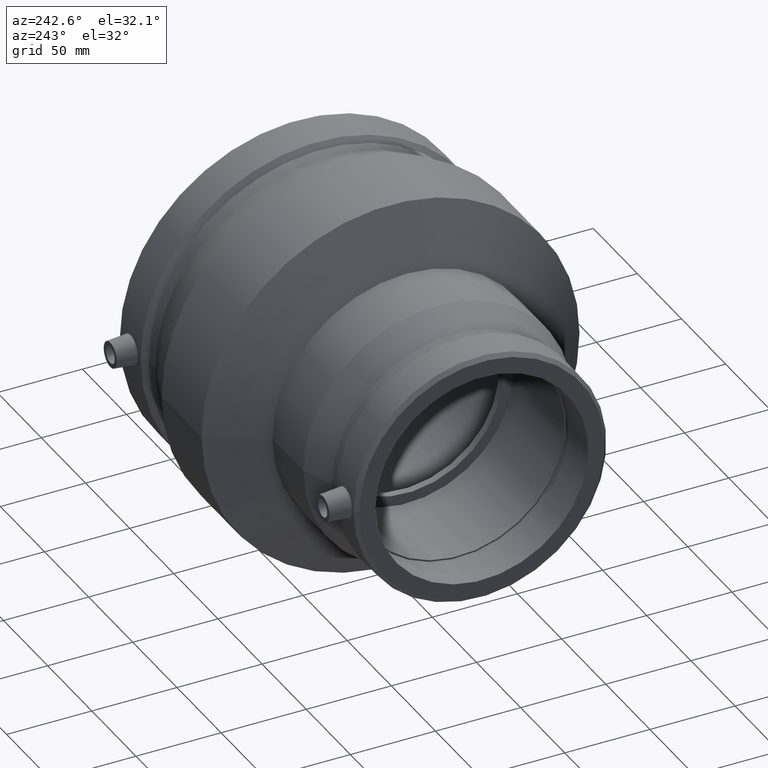
[diagram: clean part render]
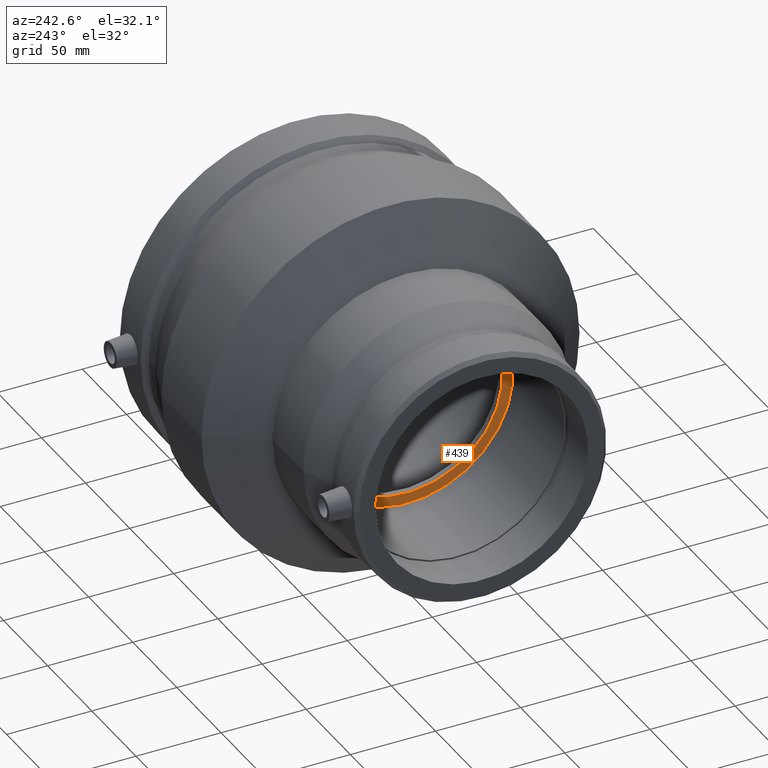
[diagram: same view with one face highlighted and labeled with its STEP entity id]
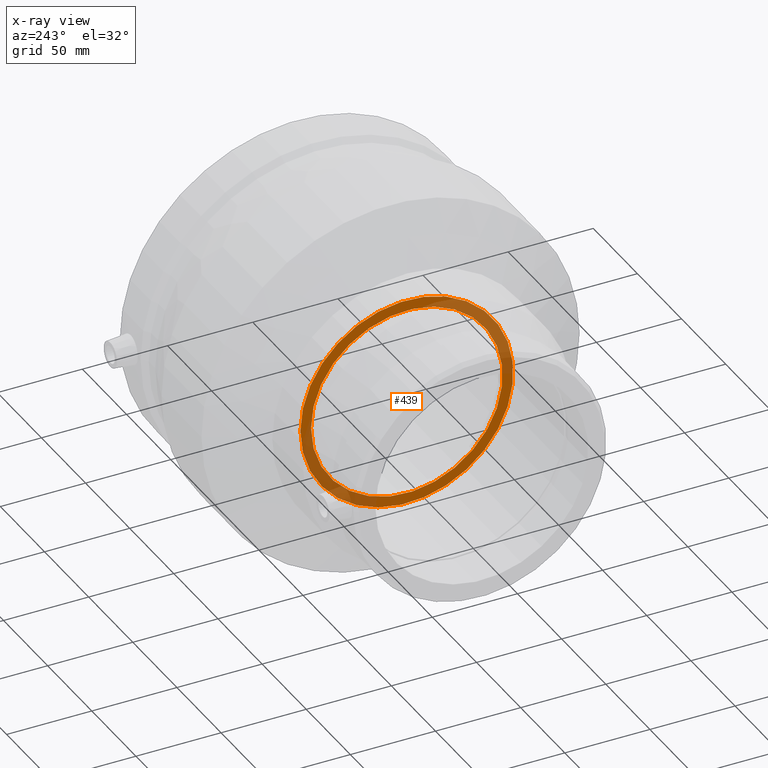
[diagram: x-ray of the same camera — body ghosted, the highlighted face saturated]
A machine part, auxiliary view. The second image highlights one B-rep face of the part: STEP entity #439.
The next image is the same camera in x-ray: the body ghosted, the highlighted face saturated — about 40% of this face is hidden behind the body in this view.
In plain terms, the highlighted planar face has unit normal (-1, 0, 0).
Its self-contained STEP definition (entity closure, byte-faithful):
#63=FACE_BOUND('',#191,.T.);
#117=FACE_OUTER_BOUND('',#190,.T.);
#190=EDGE_LOOP('',(#383));
#191=EDGE_LOOP('',(#384));
#232=CIRCLE('',#512,56.25);
#233=CIRCLE('',#514,62.5);
#271=VERTEX_POINT('',#845);
#272=VERTEX_POINT('',#848);
#310=EDGE_CURVE('',#271,#271,#232,.T.);
#311=EDGE_CURVE('',#272,#272,#233,.T.);
#383=ORIENTED_EDGE('',*,*,#311,.F.);
#384=ORIENTED_EDGE('',*,*,#310,.T.);
#403=PLANE('',#513);
#439=ADVANCED_FACE('',(#117,#63),#403,.T.);
#512=AXIS2_PLACEMENT_3D('',#846,#656,#657);
#513=AXIS2_PLACEMENT_3D('',#847,#658,#659);
#514=AXIS2_PLACEMENT_3D('',#849,#660,#661);
#656=DIRECTION('center_axis',(1.,0.,0.));
#657=DIRECTION('ref_axis',(0.,0.,-1.));
#658=DIRECTION('center_axis',(-1.,0.,0.));
#659=DIRECTION('ref_axis',(0.,0.,1.));
#660=DIRECTION('center_axis',(1.,0.,0.));
#661=DIRECTION('ref_axis',(0.,0.,-1.));
#845=CARTESIAN_POINT('',(-21.,56.25,0.));
#846=CARTESIAN_POINT('Origin',(-21.,0.,0.));
#847=CARTESIAN_POINT('Origin',(-21.,62.5,0.));
#848=CARTESIAN_POINT('',(-21.,62.5,0.));
#849=CARTESIAN_POINT('Origin',(-21.,0.,0.));